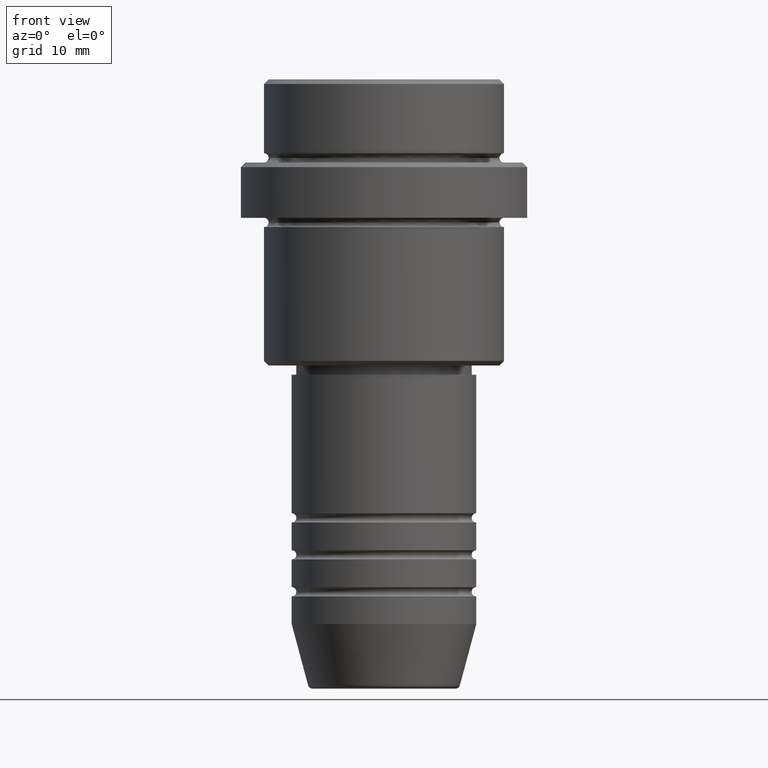
[diagram: clean part render]
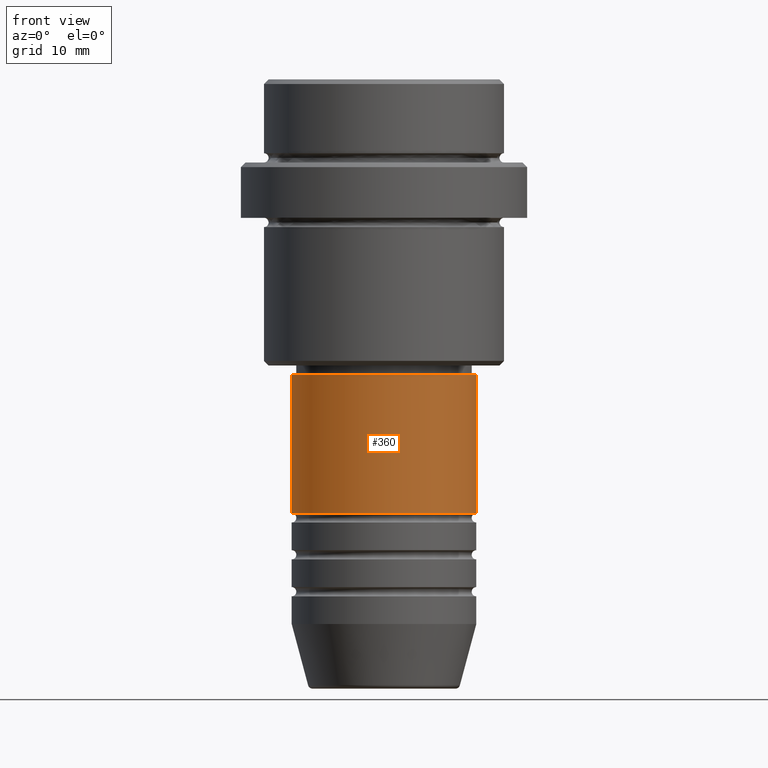
[diagram: same view with one face highlighted and labeled with its STEP entity id]
A machine part, front view. The second image highlights one B-rep face of the part: STEP entity #360.
In plain terms, the highlighted cylindrical surface (partial cylindrical patch) has radius 10 mm, axis along (-0, -0, 1).
Its self-contained STEP definition (entity closure, byte-faithful):
#27 = LINE ( 'NONE', #798, #1410 ) ;
#65 = CIRCLE ( 'NONE', #1132, 10.00000000000000178 ) ;
#107 = AXIS2_PLACEMENT_3D ( 'NONE', #1408, #760, #208 ) ;
#141 = ORIENTED_EDGE ( 'NONE', *, *, #962, .T. ) ;
#174 = CARTESIAN_POINT ( 'NONE',  ( -10.00000000000000000, 1.224646799147353256E-15, -46.99999999999988631 ) ) ;
#204 = EDGE_CURVE ( 'NONE', #828, #1342, #65, .T. ) ;
#208 = DIRECTION ( 'NONE',  ( 1.000000000000000000, 0.000000000000000000, 0.000000000000000000 ) ) ;
#263 = ORIENTED_EDGE ( 'NONE', *, *, #1008, .T. ) ;
#360 = ADVANCED_FACE ( 'NONE', ( #775 ), #1182, .T. ) ;
#367 = CARTESIAN_POINT ( 'NONE',  ( -10.00000000000000178, 1.224646799147353454E-15, -32.00000000000000000 ) ) ;
#410 = DIRECTION ( 'NONE',  ( 1.000000000000000000, 0.000000000000000000, 0.000000000000000000 ) ) ;
#479 = CARTESIAN_POINT ( 'NONE',  ( 10.00000000000000178, 0.000000000000000000, -32.00000000000000000 ) ) ;
#501 = CARTESIAN_POINT ( 'NONE',  ( 0.000000000000000000, 0.000000000000000000, -32.00000000000000000 ) ) ;
#510 = CARTESIAN_POINT ( 'NONE',  ( 0.000000000000000000, 0.000000000000000000, -46.99999999999988631 ) ) ;
#535 = AXIS2_PLACEMENT_3D ( 'NONE', #510, #857, #410 ) ;
#606 = DIRECTION ( 'NONE',  ( -0.000000000000000000, -0.000000000000000000, 1.000000000000000000 ) ) ;
#760 = DIRECTION ( 'NONE',  ( -0.000000000000000000, -0.000000000000000000, 1.000000000000000000 ) ) ;
#775 = FACE_OUTER_BOUND ( 'NONE', #1409, .T. ) ;
#798 = CARTESIAN_POINT ( 'NONE',  ( -10.00000000000000178, 1.224646799147353454E-15, 0.000000000000000000 ) ) ;
#828 = VERTEX_POINT ( 'NONE', #367 ) ;
#837 = EDGE_CURVE ( 'NONE', #1065, #828, #27, .T. ) ;
#857 = DIRECTION ( 'NONE',  ( -0.000000000000000000, -0.000000000000000000, 1.000000000000000000 ) ) ;
#924 = DIRECTION ( 'NONE',  ( -0.000000000000000000, -0.000000000000000000, 1.000000000000000000 ) ) ;
#947 = DIRECTION ( 'NONE',  ( -0.000000000000000000, -0.000000000000000000, 1.000000000000000000 ) ) ;
#962 = EDGE_CURVE ( 'NONE', #1065, #1020, #1051, .T. ) ;
#966 = CARTESIAN_POINT ( 'NONE',  ( 10.00000000000000178, 0.000000000000000000, 0.000000000000000000 ) ) ;
#1008 = EDGE_CURVE ( 'NONE', #1020, #1342, #1287, .T. ) ;
#1019 = ORIENTED_EDGE ( 'NONE', *, *, #837, .F. ) ;
#1020 = VERTEX_POINT ( 'NONE', #1392 ) ;
#1051 = CIRCLE ( 'NONE', #535, 10.00000000000000000 ) ;
#1062 = DIRECTION ( 'NONE',  ( 1.000000000000000000, 0.000000000000000000, 0.000000000000000000 ) ) ;
#1065 = VERTEX_POINT ( 'NONE', #174 ) ;
#1115 = ORIENTED_EDGE ( 'NONE', *, *, #204, .F. ) ;
#1132 = AXIS2_PLACEMENT_3D ( 'NONE', #501, #947, #1062 ) ;
#1182 = CYLINDRICAL_SURFACE ( 'NONE', #107, 10.00000000000000178 ) ;
#1251 = VECTOR ( 'NONE', #606, 1000.000000000000000 ) ;
#1287 = LINE ( 'NONE', #966, #1251 ) ;
#1342 = VERTEX_POINT ( 'NONE', #479 ) ;
#1392 = CARTESIAN_POINT ( 'NONE',  ( 10.00000000000000000, 0.000000000000000000, -46.99999999999988631 ) ) ;
#1408 = CARTESIAN_POINT ( 'NONE',  ( 0.000000000000000000, 0.000000000000000000, 0.000000000000000000 ) ) ;
#1409 = EDGE_LOOP ( 'NONE', ( #1019, #141, #263, #1115 ) ) ;
#1410 = VECTOR ( 'NONE', #924, 1000.000000000000000 ) ;